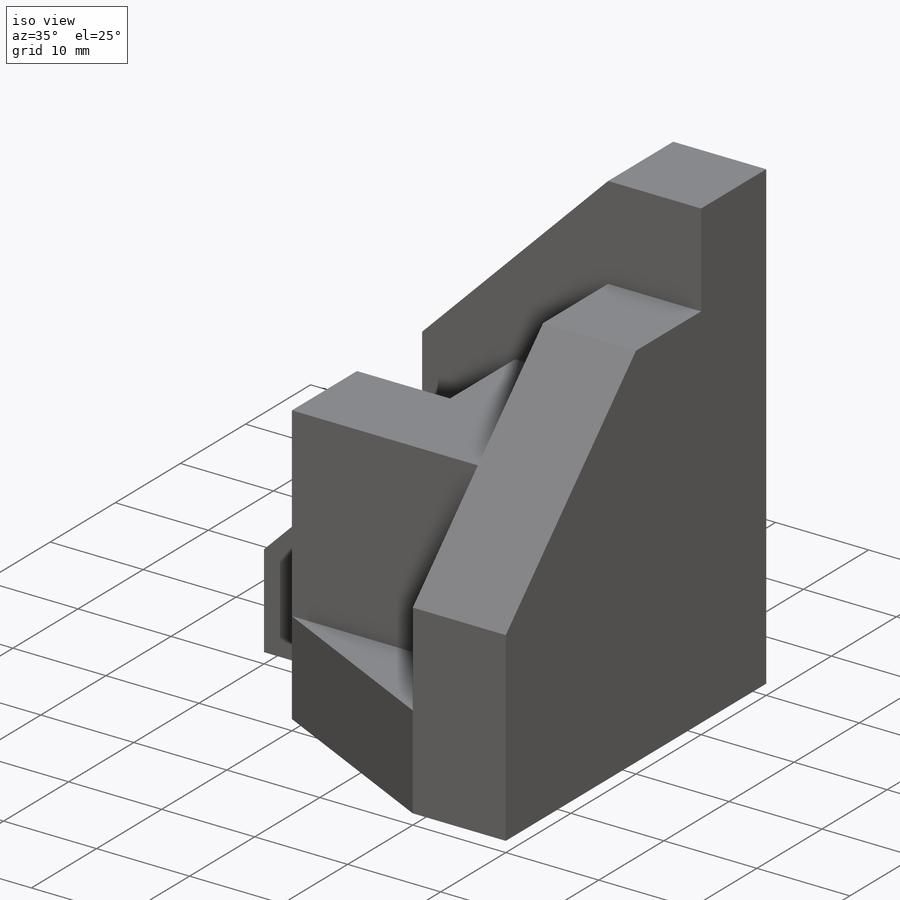
[diagram: iso view]
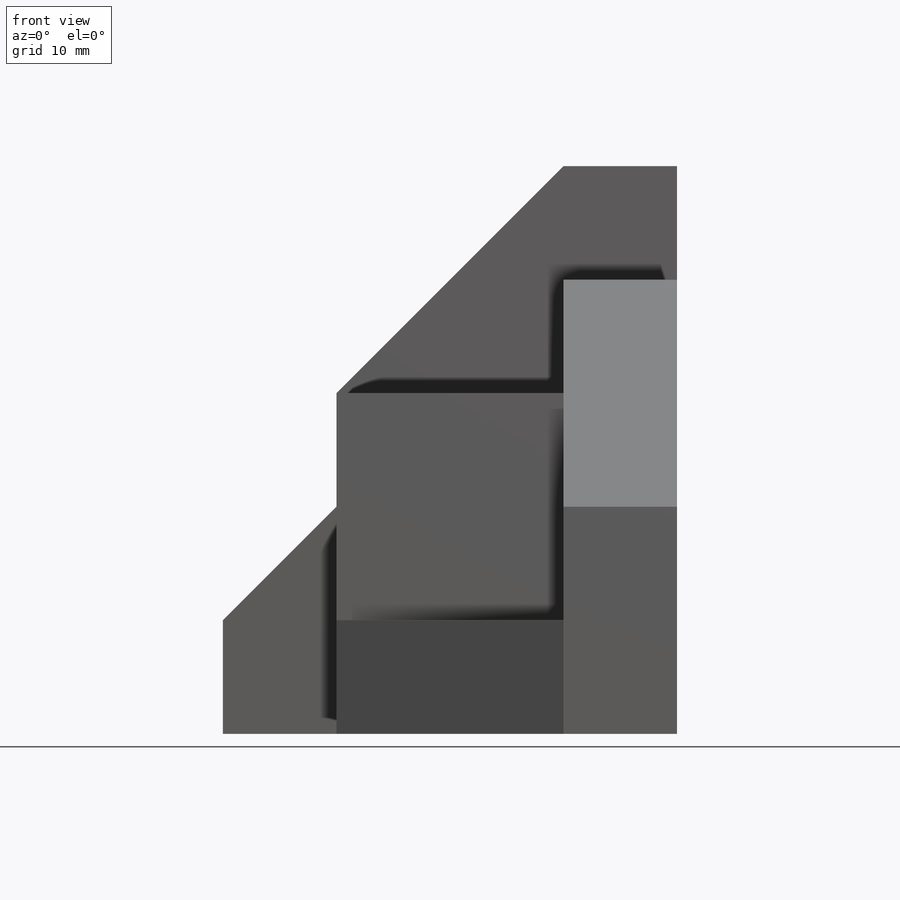
[diagram: front view]
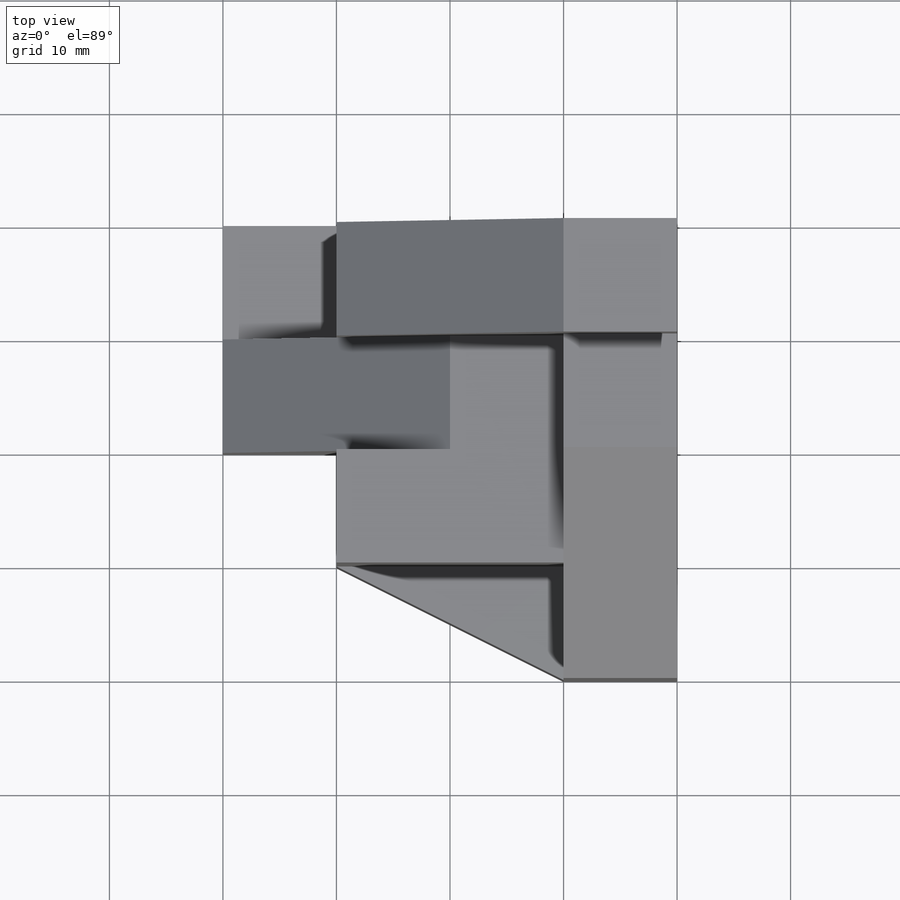
[diagram: top view]
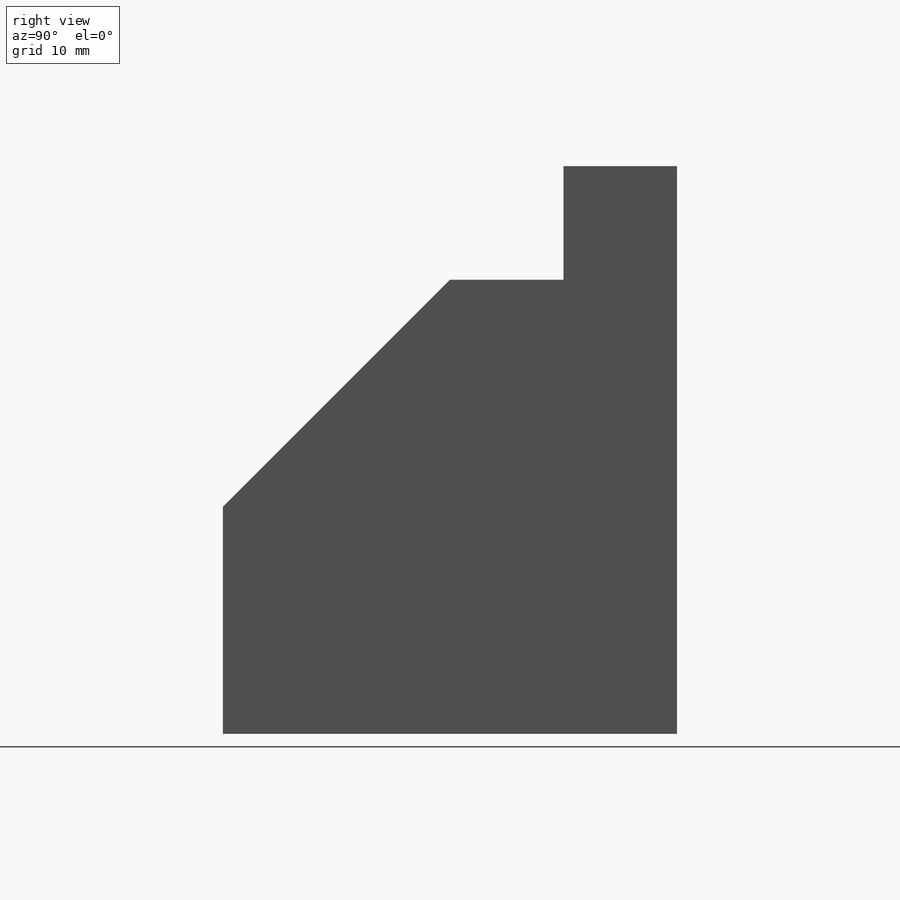
[diagram: right view]
SOLIDWORKS PART (.sldprt)
format: sldprt  version: not decoded by parser v0  size: 224,256 bytes
history: native  units: mm
features: sketch x6, cut_extrude x5, chamfer x2, material x1, extrude x1 (+13 scaffold rows collapsed)
feature tree (28):
  scaffold x13  (default folders/planes/origin — collapsed)
  material  "Material <not specified>"
  sketch  "Sketch1"  dims[D1=20.0mm D2=10.0mm D3=10.0mm D4=20.0mm D5=10.0mm D6=40.0mm D7=10.0mm D8=40.0mm]
  extrude  "Boss-Extrude1"  Depth=50mm
  sketch  "Sketch2"  dims[D1=10.0mm D2=10.0mm D3=10.0mm]
  cut_extrude  "Cut-Extrude1"  Depth=10mm
  sketch  "Sketch3"  dims[D1=10.0mm D2=10.0mm]
  cut_extrude  "Cut-Extrude2"  Depth=40mm
  chamfer  "Chamfer1"  Distance=20mm
  sketch  "Sketch4"  dims[c1.D1=0.0mm c1.D2=9.1887mm c2.D1=20.0mm c2.D2=10.0mm]
  cut_extrude  "Cut-Extrude3"  Depth=10mm
  sketch  "Sketch5"
  cut_extrude  "Cut-Extrude4"  Depth=10mm
  sketch  "Sketch6"
  cut_extrude  "Cut-Extrude5"  Depth=20mm
  chamfer  "Chamfer2"  Distance=20mm Angle=45deg
decode coverage: 12 of 14 modeling features carry decoded parameters
note: suppression state not decoded; provenance and decode notes live in map.json
